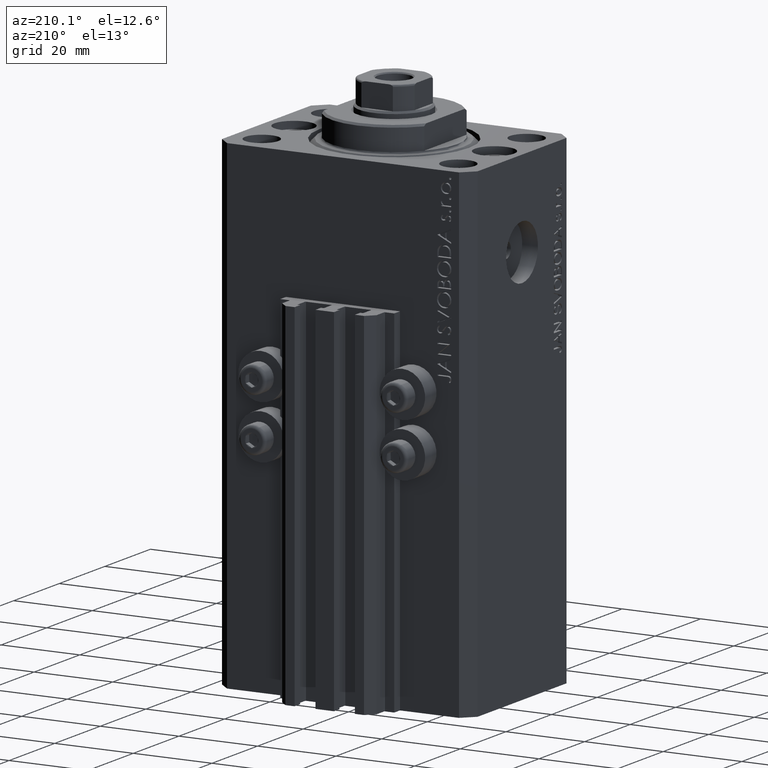
[diagram: clean part render]
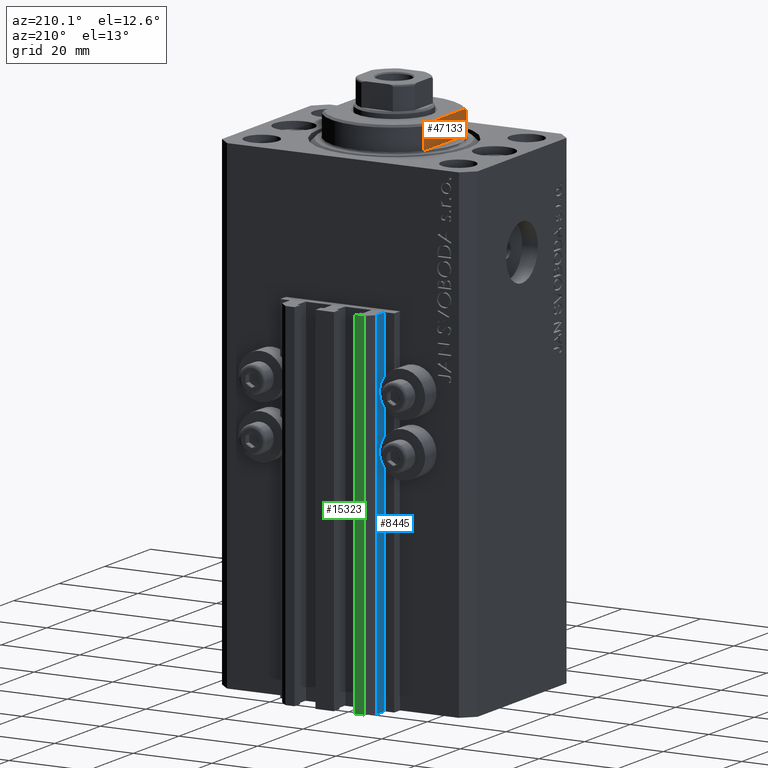
[diagram: same view with three faces highlighted in distinct colors, each labeled with its STEP entity id]
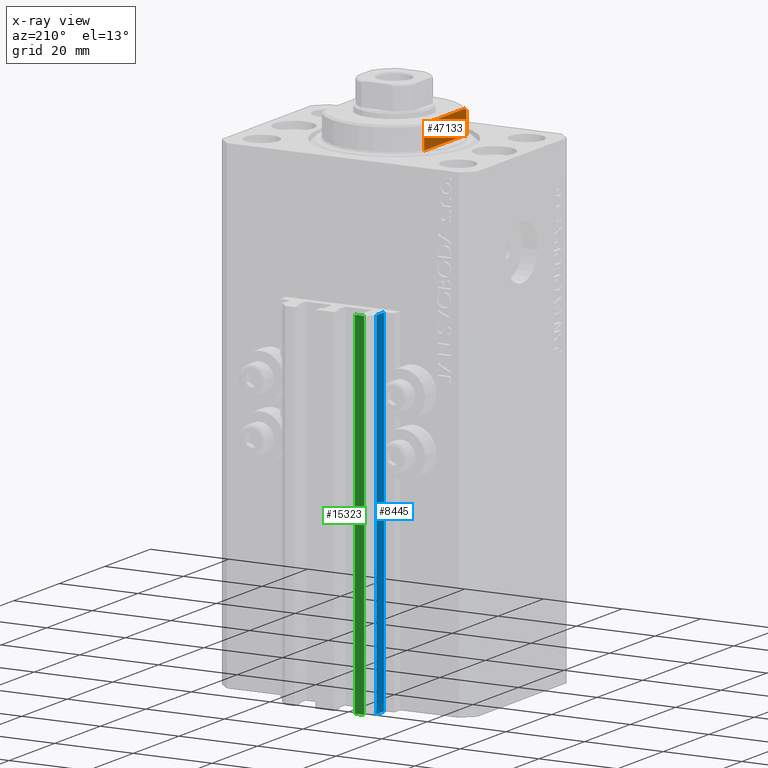
[diagram: x-ray of the same camera — body ghosted, the three highlighted faces saturated]
A machine part, auxiliary view with three faces highlighted in distinct colors.
The next image is the same camera in x-ray (body ghosted, the three faces saturated) — at least one of them is partly hidden behind the body in this view.
Their STEP definitions:

[orange] entity #47133 — the highlighted planar face has unit normal (-1, 0, 0).
#1795 = CARTESIAN_POINT ( 'NONE',  ( 13.00000000000000000, -8.738941625005658409, -6.337731789204285704 ) ) ;
#2543 = PLANE ( 'NONE',  #23233 ) ;
#4232 = CARTESIAN_POINT ( 'NONE',  ( 13.00000000000000000, 9.327379053088815652, -0.4999999999999995559 ) ) ;
#5410 = CARTESIAN_POINT ( 'NONE',  ( 13.00000000000000000, 8.440971508067139695, -6.500000000000000000 ) ) ;
#5988 = CARTESIAN_POINT ( 'NONE',  ( 13.00000000000000000, 8.440971508067139695, -6.500000000000000000 ) ) ;
#6308 = CARTESIAN_POINT ( 'NONE',  ( 13.00000000000000000, -43.08131845707602992, -0.4999999999999995559 ) ) ;
#10461 = CARTESIAN_POINT ( 'NONE',  ( 13.00000000000000000, -9.327379053088815652, -6.000000000000023981 ) ) ;
#11664 = EDGE_CURVE ( 'NONE', #33124, #45520, #43142, .T. ) ;
#11919 = EDGE_CURVE ( 'NONE', #33459, #45082, #46726, .T. ) ;
#13076 = CARTESIAN_POINT ( 'NONE',  ( 13.00000000000000000, -43.08131845707602992, -0.4999999999999995559 ) ) ;
#13214 = VERTEX_POINT ( 'NONE', #25869 ) ;
#13519 = CARTESIAN_POINT ( 'NONE',  ( 13.00000000000000000, -9.034292940839600661, -6.170857829009063877 ) ) ;
#13584 = CARTESIAN_POINT ( 'NONE',  ( 13.00000000000000000, -43.08131845707602992, -6.500000000000000000 ) ) ;
#14046 = DIRECTION ( 'NONE',  ( -0.000000000000000000, -0.000000000000000000, 1.000000000000000000 ) ) ;
#16338 = VECTOR ( 'NONE', #14046, 1000.000000000000000 ) ;
#17704 = ORIENTED_EDGE ( 'NONE', *, *, #11919, .F. ) ;
#18680 = ORIENTED_EDGE ( 'NONE', *, *, #11664, .T. ) ;
#21751 = DIRECTION ( 'NONE',  ( 0.000000000000000000, 0.000000000000000000, -1.000000000000000000 ) ) ;
#23116 = ORIENTED_EDGE ( 'NONE', *, *, #23602, .T. ) ;
#23233 = AXIS2_PLACEMENT_3D ( 'NONE', #13076, #35242, #38583 ) ;
#23602 = EDGE_CURVE ( 'NONE', #45520, #13214, #34707, .T. ) ;
#24025 = FACE_OUTER_BOUND ( 'NONE', #31724, .T. ) ;
#25339 = LINE ( 'NONE', #39901, #29182 ) ;
#25869 = CARTESIAN_POINT ( 'NONE',  ( 13.00000000000000000, -9.327379053088815652, -0.4999999999999995559 ) ) ;
#27224 = CARTESIAN_POINT ( 'NONE',  ( 13.00000000000000000, 9.034035639617135516, -6.171007825636148247 ) ) ;
#28121 = DIRECTION ( 'NONE',  ( 0.000000000000000000, -1.000000000000000000, -0.000000000000000000 ) ) ;
#28880 = VERTEX_POINT ( 'NONE', #5410 ) ;
#29182 = VECTOR ( 'NONE', #21751, 1000.000000000000000 ) ;
#31724 = EDGE_LOOP ( 'NONE', ( #18680, #23116, #41599, #17704, #33949, #46293 ) ) ;
#32380 = VECTOR ( 'NONE', #28121, 1000.000000000000000 ) ;
#33124 = VERTEX_POINT ( 'NONE', #46409 ) ;
#33348 = VECTOR ( 'NONE', #38754, 1000.000000000000000 ) ;
#33459 = VERTEX_POINT ( 'NONE', #38201 ) ;
#33949 = ORIENTED_EDGE ( 'NONE', *, *, #45261, .F. ) ;
#34707 = LINE ( 'NONE', #6308, #33348 ) ;
#35242 = DIRECTION ( 'NONE',  ( 1.000000000000000000, 0.000000000000000000, -0.000000000000000000 ) ) ;
#38201 = CARTESIAN_POINT ( 'NONE',  ( 13.00000000000000000, -8.440971508067139695, -6.500000000000000000 ) ) ;
#38583 = DIRECTION ( 'NONE',  ( -0.000000000000000000, 0.000000000000000000, -1.000000000000000000 ) ) ;
#38754 = DIRECTION ( 'NONE',  ( 0.000000000000000000, -1.000000000000000000, -0.000000000000000000 ) ) ;
#38906 = CARTESIAN_POINT ( 'NONE',  ( 13.00000000000000000, 9.327379053088916905, -6.000000000000014211 ) ) ;
#39901 = CARTESIAN_POINT ( 'NONE',  ( 13.00000000000000000, -9.327379053088813876, -6.500000000000000000 ) ) ;
#40520 = EDGE_CURVE ( 'NONE', #13214, #45082, #25339, .T. ) ;
#41599 = ORIENTED_EDGE ( 'NONE', *, *, #40520, .T. ) ;
#41606 = EDGE_CURVE ( 'NONE', #33124, #28880, #44978, .T. ) ;
#42150 = CARTESIAN_POINT ( 'NONE',  ( 13.00000000000000000, -9.327379053088815652, -6.000000000000023981 ) ) ;
#42495 = CARTESIAN_POINT ( 'NONE',  ( 13.00000000000000000, 8.738667591047024175, -6.337881022290547506 ) ) ;
#43142 = LINE ( 'NONE', #46472, #16338 ) ;
#44978 = B_SPLINE_CURVE_WITH_KNOTS ( 'NONE', 3,
 ( #38906, #27224, #42495, #5988 ),
 .UNSPECIFIED., .F., .F.,
 ( 4, 4 ),
 ( 0.03031084603841393416, 0.03132841702658675093 ),
 .UNSPECIFIED. ) ;
#45082 = VERTEX_POINT ( 'NONE', #10461 ) ;
#45261 = EDGE_CURVE ( 'NONE', #28880, #33459, #46253, .T. ) ;
#45520 = VERTEX_POINT ( 'NONE', #4232 ) ;
#46186 = CARTESIAN_POINT ( 'NONE',  ( 13.00000000000000000, -8.440971508067139695, -6.500000000000000000 ) ) ;
#46253 = LINE ( 'NONE', #13584, #32380 ) ;
#46293 = ORIENTED_EDGE ( 'NONE', *, *, #41606, .F. ) ;
#46409 = CARTESIAN_POINT ( 'NONE',  ( 13.00000000000000000, 9.327379053088916905, -6.000000000000014211 ) ) ;
#46472 = CARTESIAN_POINT ( 'NONE',  ( 13.00000000000000000, 9.327379053088813876, -6.500000000000000000 ) ) ;
#46726 = B_SPLINE_CURVE_WITH_KNOTS ( 'NONE', 3,
 ( #46186, #1795, #13519, #42150 ),
 .UNSPECIFIED., .F., .F.,
 ( 4, 4 ),
 ( 0.04915043732154477513, 0.05017913261572019834 ),
 .UNSPECIFIED. ) ;
#47133 = ADVANCED_FACE ( 'NONE', ( #24025 ), #2543, .T. ) ;

[blue] entity #8445 — the highlighted planar face has unit normal (-1, 0, 0).
#445 = DIRECTION ( 'NONE',  ( 0.000000000000000000, -1.000000000000000000, 0.000000000000000000 ) ) ;
#448 = CARTESIAN_POINT ( 'NONE',  ( -12.00000000000000000, 28.49999999999948841, -123.0000000000000000 ) ) ;
#2706 = ORIENTED_EDGE ( 'NONE', *, *, #32355, .T. ) ;
#3352 = CARTESIAN_POINT ( 'NONE',  ( -12.00000000000000000, 28.49999999999948841, -123.0000000000000000 ) ) ;
#4043 = LINE ( 'NONE', #18591, #25522 ) ;
#4223 = CARTESIAN_POINT ( 'NONE',  ( -12.00000000000000000, 25.19999999999949125, -123.0000000000000000 ) ) ;
#4698 = CARTESIAN_POINT ( 'NONE',  ( -12.00000000000000000, 28.49999999999948841, -33.00000000000000000 ) ) ;
#8064 = VERTEX_POINT ( 'NONE', #4698 ) ;
#8445 = ADVANCED_FACE ( 'NONE', ( #37797 ), #15872, .T. ) ;
#8612 = VECTOR ( 'NONE', #14675, 1000.000000000000000 ) ;
#8717 = DIRECTION ( 'NONE',  ( -1.000000000000000000, 0.000000000000000000, 0.000000000000000000 ) ) ;
#11095 = ORIENTED_EDGE ( 'NONE', *, *, #17928, .F. ) ;
#12177 = CARTESIAN_POINT ( 'NONE',  ( -12.00000000000000000, 25.19999999999949125, -123.0000000000000000 ) ) ;
#12531 = CARTESIAN_POINT ( 'NONE',  ( -12.00000000000000000, 28.49999999999948841, -123.0000000000000000 ) ) ;
#13419 = EDGE_CURVE ( 'NONE', #8064, #34451, #4043, .T. ) ;
#13836 = AXIS2_PLACEMENT_3D ( 'NONE', #12531, #8717, #26123 ) ;
#14391 = ORIENTED_EDGE ( 'NONE', *, *, #29369, .T. ) ;
#14675 = DIRECTION ( 'NONE',  ( 0.000000000000000000, -1.000000000000000000, 0.000000000000000000 ) ) ;
#15872 = PLANE ( 'NONE',  #13836 ) ;
#16421 = EDGE_LOOP ( 'NONE', ( #38004, #11095, #2706, #14391 ) ) ;
#17928 = EDGE_CURVE ( 'NONE', #44772, #8064, #36505, .T. ) ;
#18591 = CARTESIAN_POINT ( 'NONE',  ( -12.00000000000000000, 28.49999999999948841, -33.00000000000000000 ) ) ;
#18621 = DIRECTION ( 'NONE',  ( 0.000000000000000000, 0.000000000000000000, 1.000000000000000000 ) ) ;
#20488 = CARTESIAN_POINT ( 'NONE',  ( -12.00000000000000000, 25.19999999999949125, -33.00000000000000000 ) ) ;
#25522 = VECTOR ( 'NONE', #445, 1000.000000000000000 ) ;
#25860 = CARTESIAN_POINT ( 'NONE',  ( -12.00000000000000000, 28.49999999999948841, -123.0000000000000000 ) ) ;
#26123 = DIRECTION ( 'NONE',  ( 0.000000000000000000, 0.000000000000000000, 1.000000000000000000 ) ) ;
#26330 = LINE ( 'NONE', #25860, #8612 ) ;
#29369 = EDGE_CURVE ( 'NONE', #43843, #34451, #40818, .T. ) ;
#32355 = EDGE_CURVE ( 'NONE', #44772, #43843, #26330, .T. ) ;
#32509 = VECTOR ( 'NONE', #32930, 1000.000000000000000 ) ;
#32930 = DIRECTION ( 'NONE',  ( 0.000000000000000000, 0.000000000000000000, 1.000000000000000000 ) ) ;
#34451 = VERTEX_POINT ( 'NONE', #20488 ) ;
#36505 = LINE ( 'NONE', #448, #32509 ) ;
#37797 = FACE_OUTER_BOUND ( 'NONE', #16421, .T. ) ;
#38004 = ORIENTED_EDGE ( 'NONE', *, *, #13419, .F. ) ;
#40818 = LINE ( 'NONE', #12177, #46429 ) ;
#43843 = VERTEX_POINT ( 'NONE', #4223 ) ;
#44772 = VERTEX_POINT ( 'NONE', #3352 ) ;
#46429 = VECTOR ( 'NONE', #18621, 1000.000000000000000 ) ;

[green] entity #15323 — the highlighted planar face has unit normal (0, 1, 0).
#4658 = CARTESIAN_POINT ( 'NONE',  ( -7.650000000000000355, 30.49999999999948486, -123.0000000000000000 ) ) ;
#4894 = DIRECTION ( 'NONE',  ( -1.000000000000000000, 1.476360405086645049E-15, 0.000000000000000000 ) ) ;
#5013 = EDGE_CURVE ( 'NONE', #13473, #26786, #30549, .T. ) ;
#6368 = VERTEX_POINT ( 'NONE', #13513 ) ;
#6460 = CARTESIAN_POINT ( 'NONE',  ( -7.650000000000000355, 30.49999999999948486, -33.00000000000000000 ) ) ;
#13473 = VERTEX_POINT ( 'NONE', #18814 ) ;
#13513 = CARTESIAN_POINT ( 'NONE',  ( -7.650000000000000355, 30.49999999999948486, -33.00000000000000000 ) ) ;
#14523 = VECTOR ( 'NONE', #15776, 1000.000000000000000 ) ;
#15323 = ADVANCED_FACE ( 'NONE', ( #23968 ), #41886, .T. ) ;
#15776 = DIRECTION ( 'NONE',  ( -1.000000000000000000, 1.476360405086644852E-15, 0.000000000000000000 ) ) ;
#15830 = ORIENTED_EDGE ( 'NONE', *, *, #42736, .F. ) ;
#16233 = EDGE_CURVE ( 'NONE', #13473, #6368, #19684, .T. ) ;
#17335 = VECTOR ( 'NONE', #44705, 1000.000000000000000 ) ;
#18228 = LINE ( 'NONE', #43770, #17335 ) ;
#18814 = CARTESIAN_POINT ( 'NONE',  ( -7.650000000000000355, 30.49999999999948486, -123.0000000000000000 ) ) ;
#19684 = LINE ( 'NONE', #34723, #34775 ) ;
#21022 = AXIS2_PLACEMENT_3D ( 'NONE', #4658, #37580, #4894 ) ;
#21434 = CARTESIAN_POINT ( 'NONE',  ( -10.00000000000000000, 30.49999999999948841, -123.0000000000000000 ) ) ;
#21752 = VERTEX_POINT ( 'NONE', #34013 ) ;
#22970 = EDGE_CURVE ( 'NONE', #26786, #21752, #18228, .T. ) ;
#23968 = FACE_OUTER_BOUND ( 'NONE', #32589, .T. ) ;
#24821 = LINE ( 'NONE', #6460, #45253 ) ;
#26786 = VERTEX_POINT ( 'NONE', #21434 ) ;
#29675 = ORIENTED_EDGE ( 'NONE', *, *, #16233, .F. ) ;
#30549 = LINE ( 'NONE', #45567, #14523 ) ;
#30654 = ORIENTED_EDGE ( 'NONE', *, *, #22970, .T. ) ;
#30900 = ORIENTED_EDGE ( 'NONE', *, *, #5013, .T. ) ;
#32589 = EDGE_LOOP ( 'NONE', ( #15830, #29675, #30900, #30654 ) ) ;
#34013 = CARTESIAN_POINT ( 'NONE',  ( -10.00000000000000000, 30.49999999999948841, -33.00000000000000000 ) ) ;
#34723 = CARTESIAN_POINT ( 'NONE',  ( -7.650000000000000355, 30.49999999999948486, -123.0000000000000000 ) ) ;
#34775 = VECTOR ( 'NONE', #37585, 1000.000000000000000 ) ;
#37580 = DIRECTION ( 'NONE',  ( 1.476360405086645049E-15, 1.000000000000000000, -0.000000000000000000 ) ) ;
#37585 = DIRECTION ( 'NONE',  ( 0.000000000000000000, 0.000000000000000000, 1.000000000000000000 ) ) ;
#39373 = DIRECTION ( 'NONE',  ( -1.000000000000000000, 1.476360405086644852E-15, 0.000000000000000000 ) ) ;
#41886 = PLANE ( 'NONE',  #21022 ) ;
#42736 = EDGE_CURVE ( 'NONE', #6368, #21752, #24821, .T. ) ;
#43770 = CARTESIAN_POINT ( 'NONE',  ( -10.00000000000000000, 30.49999999999948841, -123.0000000000000000 ) ) ;
#44705 = DIRECTION ( 'NONE',  ( 0.000000000000000000, 0.000000000000000000, 1.000000000000000000 ) ) ;
#45253 = VECTOR ( 'NONE', #39373, 1000.000000000000000 ) ;
#45567 = CARTESIAN_POINT ( 'NONE',  ( -7.650000000000000355, 30.49999999999948486, -123.0000000000000000 ) ) ;